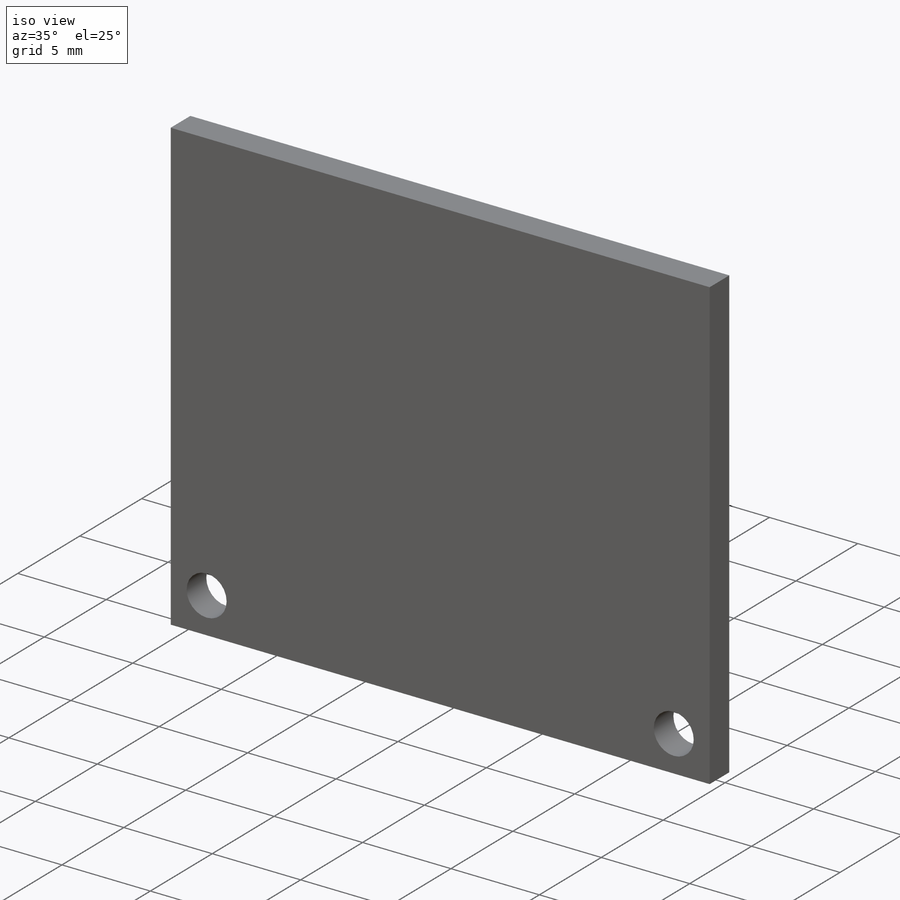
[diagram: iso view]
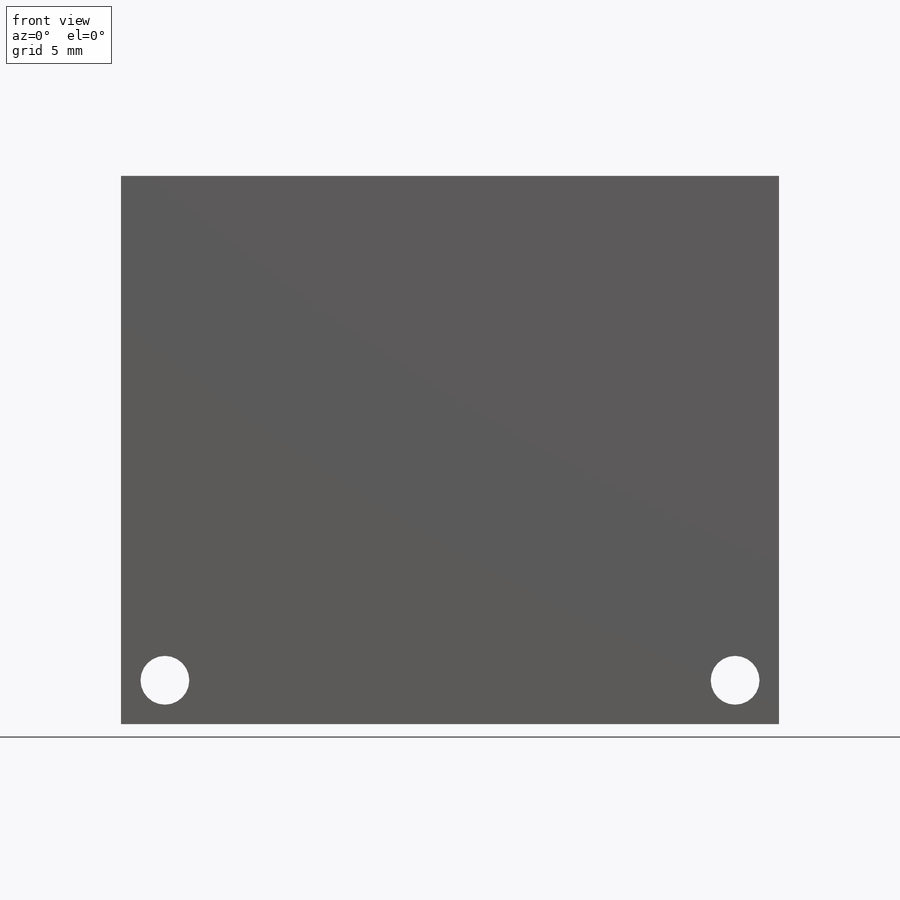
[diagram: front view]
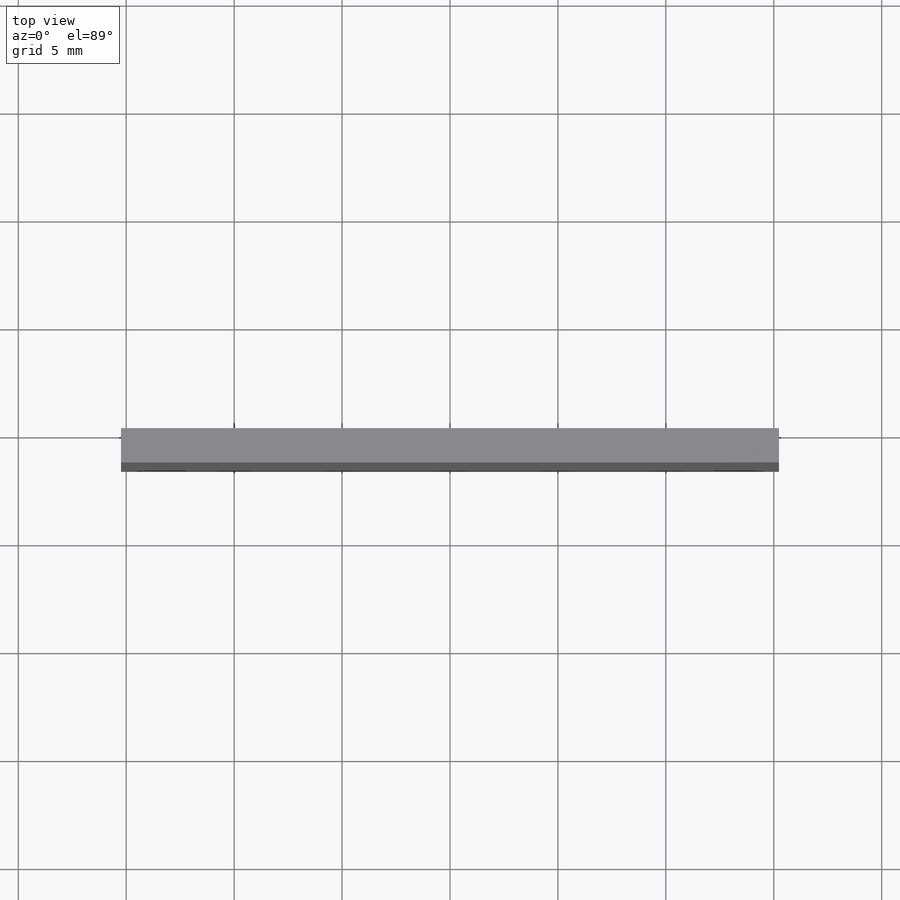
[diagram: top view]
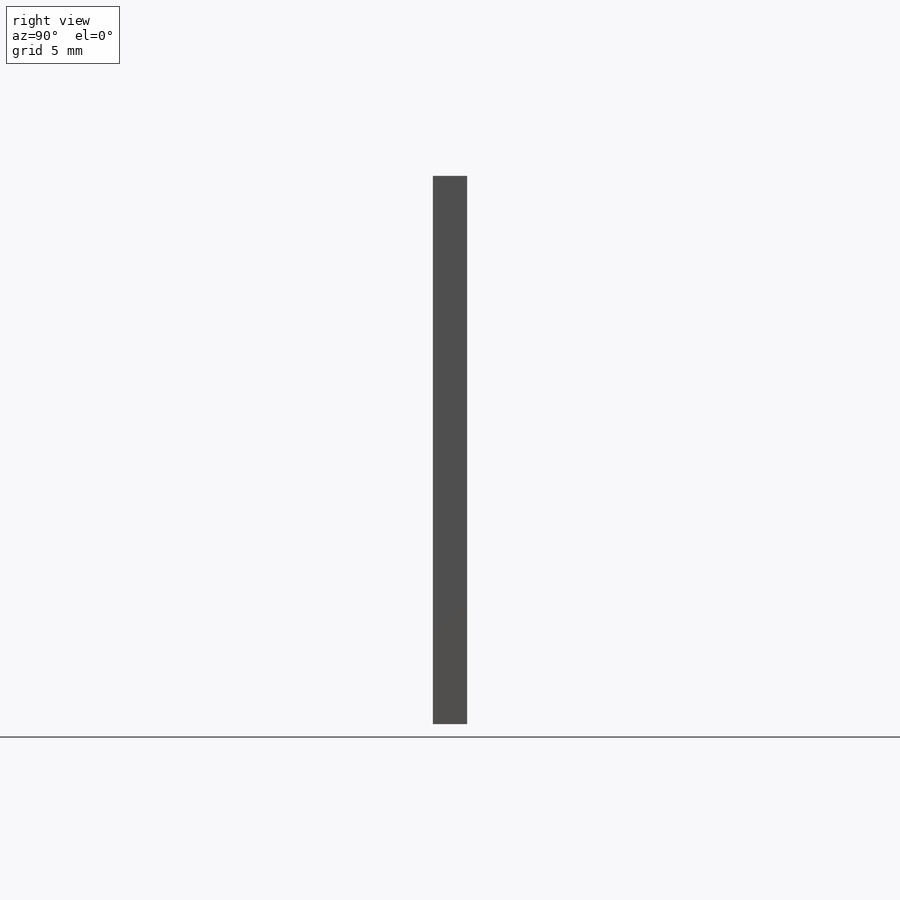
[diagram: right view]
SOLIDWORKS PART (.sldprt)
format: sldprt  version: not decoded by parser v0  size: 143,360 bytes
history: native  units: mm
features: sketch x3, material x1, extrude x1, hole x1, mirror x1 (+12 scaffold rows collapsed)
feature tree (19):
  scaffold x12  (default folders/planes/origin — collapsed)
  material  "Material <not specified>"
  sketch  "Sketch1"  dims[D1=30.48mm D2=25.4mm]
  extrude  "Boss-Extrude1"  Depth=1.5875mm
  hole  "#2 Clearance Hole1"  Diameter=2.2606mm Depth=1.5885mm
  sketch  "Sketch4"  dims[D1=2.032mm D2=2.032mm]
  sketch  "Sketch3"  dims[hole-wizard template sketch: 59 standard entries collapsed; hole parameters kept: c18.Thru Hole Dia.=2.2606mm c18.Thru Hole Depth=1.5885mm]
  mirror  "Mirror1"
decode coverage: 5 of 6 modeling features carry decoded parameters
note: ~ marks probable driven/reference dimensions
note: suppression state not decoded; provenance and decode notes live in map.json
